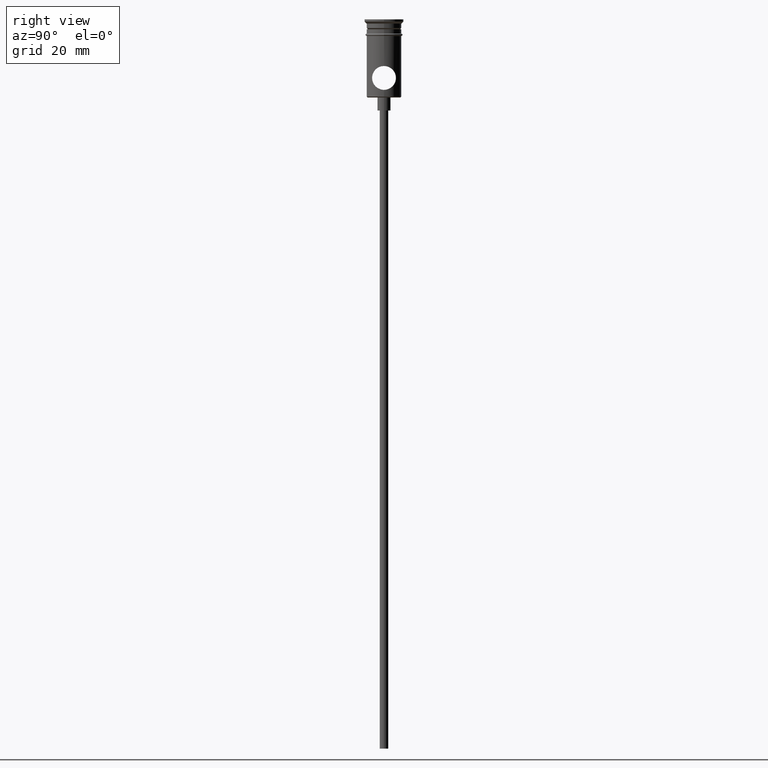
[diagram: clean part render]
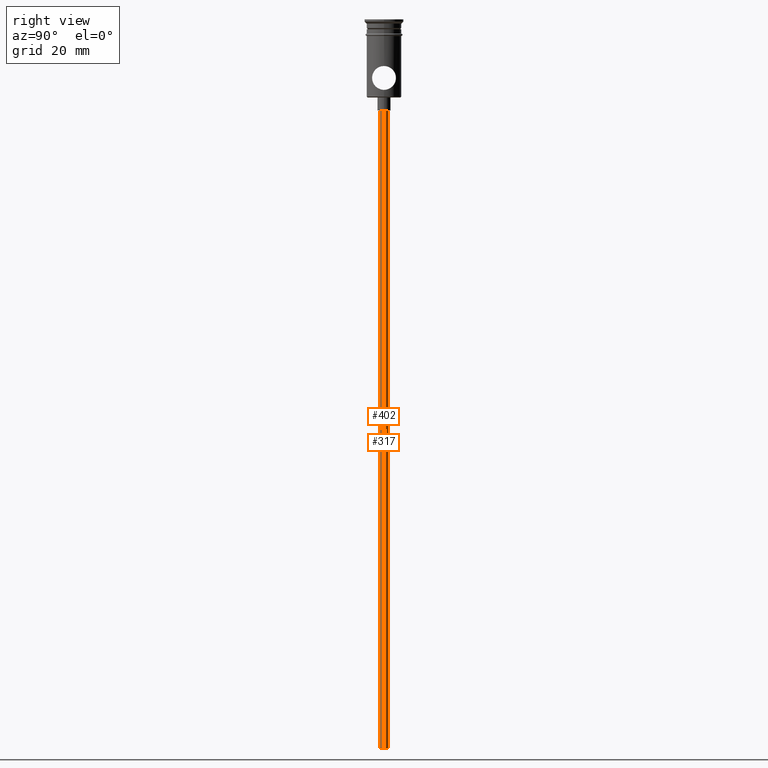
[diagram: same view with one multi-face feature highlighted, each face labeled with its STEP entity id]
A machine part, right view. The highlighted faces form ONE feature: a constant-radius fillet chain: 2 tangent blend faces with common blend radius 1 mm. The faces share edges in the B-rep.
Their STEP definitions:
[1] entity #317 (Cylinder):
#34 = ORIENTED_EDGE ( 'NONE', *, *, #428, .F. ) ;
#70 = AXIS2_PLACEMENT_3D ( 'NONE', #1213, #156, #585 ) ;
#94 = ORIENTED_EDGE ( 'NONE', *, *, #448, .T. ) ;
#119 = CARTESIAN_POINT ( 'NONE',  ( 0.000000000000000000, 0.000000000000000000, -20.99999999999999645 ) ) ;
#121 = ORIENTED_EDGE ( 'NONE', *, *, #131, .T. ) ;
#131 = EDGE_CURVE ( 'NONE', #1044, #1380, #1000, .T. ) ;
#156 = DIRECTION ( 'NONE',  ( -0.000000000000000000, -0.000000000000000000, 1.000000000000000000 ) ) ;
#264 = EDGE_LOOP ( 'NONE', ( #795, #94, #121, #34 ) ) ;
#272 = DIRECTION ( 'NONE',  ( -1.000000000000000000, 0.000000000000000000, 0.000000000000000000 ) ) ;
#308 = VERTEX_POINT ( 'NONE', #1126 ) ;
#317 = ADVANCED_FACE ( 'NONE', ( #1001 ), #1339, .T. ) ;
#428 = EDGE_CURVE ( 'NONE', #1334, #1380, #523, .T. ) ;
#448 = EDGE_CURVE ( 'NONE', #308, #1044, #831, .T. ) ;
#449 = DIRECTION ( 'NONE',  ( -1.000000000000000000, 0.000000000000000000, 0.000000000000000000 ) ) ;
#513 = CIRCLE ( 'NONE', #1306, 0.9999999999999997780 ) ;
#523 = LINE ( 'NONE', #1170, #643 ) ;
#585 = DIRECTION ( 'NONE',  ( 1.000000000000000000, 0.000000000000000000, 0.000000000000000000 ) ) ;
#616 = DIRECTION ( 'NONE',  ( 0.000000000000000000, 0.000000000000000000, -1.000000000000000000 ) ) ;
#643 = VECTOR ( 'NONE', #1048, 1000.000000000000000 ) ;
#667 = VECTOR ( 'NONE', #937, 1000.000000000000000 ) ;
#697 = CARTESIAN_POINT ( 'NONE',  ( 0.000000000000000000, 0.000000000000000000, -167.9999999999999716 ) ) ;
#711 = AXIS2_PLACEMENT_3D ( 'NONE', #119, #1319, #449 ) ;
#795 = ORIENTED_EDGE ( 'NONE', *, *, #819, .F. ) ;
#819 = EDGE_CURVE ( 'NONE', #308, #1334, #513, .T. ) ;
#831 = LINE ( 'NONE', #1034, #667 ) ;
#874 = CARTESIAN_POINT ( 'NONE',  ( -0.9999999999999997780, 1.224646799147352961E-16, -20.99999999999999645 ) ) ;
#937 = DIRECTION ( 'NONE',  ( -0.000000000000000000, -0.000000000000000000, 1.000000000000000000 ) ) ;
#1000 = CIRCLE ( 'NONE', #711, 0.9999999999999997780 ) ;
#1001 = FACE_OUTER_BOUND ( 'NONE', #264, .T. ) ;
#1034 = CARTESIAN_POINT ( 'NONE',  ( -0.9999999999999997780, 1.224646799147352961E-16, -167.9999999999999716 ) ) ;
#1044 = VERTEX_POINT ( 'NONE', #874 ) ;
#1048 = DIRECTION ( 'NONE',  ( -0.000000000000000000, -0.000000000000000000, 1.000000000000000000 ) ) ;
#1103 = CARTESIAN_POINT ( 'NONE',  ( 0.9999999999999997780, 0.000000000000000000, -20.99999999999999645 ) ) ;
#1126 = CARTESIAN_POINT ( 'NONE',  ( -0.9999999999999997780, 1.224646799147352961E-16, -167.9999999999999716 ) ) ;
#1170 = CARTESIAN_POINT ( 'NONE',  ( 0.9999999999999997780, 0.000000000000000000, -167.9999999999999716 ) ) ;
#1213 = CARTESIAN_POINT ( 'NONE',  ( 0.000000000000000000, 0.000000000000000000, -167.9999999999999716 ) ) ;
#1306 = AXIS2_PLACEMENT_3D ( 'NONE', #697, #616, #272 ) ;
#1319 = DIRECTION ( 'NONE',  ( 0.000000000000000000, 0.000000000000000000, -1.000000000000000000 ) ) ;
#1334 = VERTEX_POINT ( 'NONE', #1343 ) ;
#1339 = CYLINDRICAL_SURFACE ( 'NONE', #70, 0.9999999999999997780 ) ;
#1343 = CARTESIAN_POINT ( 'NONE',  ( 0.9999999999999997780, 0.000000000000000000, -167.9999999999999716 ) ) ;
#1380 = VERTEX_POINT ( 'NONE', #1103 ) ;
[2] entity #402 (Cylinder):
#68 = CYLINDRICAL_SURFACE ( 'NONE', #209, 0.9999999999999997780 ) ;
#93 = EDGE_LOOP ( 'NONE', ( #588, #545, #748, #1104 ) ) ;
#209 = AXIS2_PLACEMENT_3D ( 'NONE', #301, #715, #1366 ) ;
#213 = EDGE_CURVE ( 'NONE', #1380, #1044, #1043, .T. ) ;
#301 = CARTESIAN_POINT ( 'NONE',  ( 0.000000000000000000, 0.000000000000000000, -167.9999999999999716 ) ) ;
#308 = VERTEX_POINT ( 'NONE', #1126 ) ;
#402 = ADVANCED_FACE ( 'NONE', ( #917 ), #68, .T. ) ;
#413 = AXIS2_PLACEMENT_3D ( 'NONE', #861, #647, #1078 ) ;
#419 = DIRECTION ( 'NONE',  ( 0.000000000000000000, 0.000000000000000000, -1.000000000000000000 ) ) ;
#428 = EDGE_CURVE ( 'NONE', #1334, #1380, #523, .T. ) ;
#448 = EDGE_CURVE ( 'NONE', #308, #1044, #831, .T. ) ;
#490 = AXIS2_PLACEMENT_3D ( 'NONE', #538, #419, #527 ) ;
#523 = LINE ( 'NONE', #1170, #643 ) ;
#527 = DIRECTION ( 'NONE',  ( -1.000000000000000000, 0.000000000000000000, 0.000000000000000000 ) ) ;
#538 = CARTESIAN_POINT ( 'NONE',  ( 0.000000000000000000, 0.000000000000000000, -167.9999999999999716 ) ) ;
#545 = ORIENTED_EDGE ( 'NONE', *, *, #987, .F. ) ;
#588 = ORIENTED_EDGE ( 'NONE', *, *, #448, .F. ) ;
#643 = VECTOR ( 'NONE', #1048, 1000.000000000000000 ) ;
#647 = DIRECTION ( 'NONE',  ( 0.000000000000000000, 0.000000000000000000, -1.000000000000000000 ) ) ;
#667 = VECTOR ( 'NONE', #937, 1000.000000000000000 ) ;
#715 = DIRECTION ( 'NONE',  ( -0.000000000000000000, -0.000000000000000000, 1.000000000000000000 ) ) ;
#748 = ORIENTED_EDGE ( 'NONE', *, *, #428, .T. ) ;
#806 = CIRCLE ( 'NONE', #490, 0.9999999999999997780 ) ;
#831 = LINE ( 'NONE', #1034, #667 ) ;
#861 = CARTESIAN_POINT ( 'NONE',  ( 0.000000000000000000, 0.000000000000000000, -20.99999999999999645 ) ) ;
#874 = CARTESIAN_POINT ( 'NONE',  ( -0.9999999999999997780, 1.224646799147352961E-16, -20.99999999999999645 ) ) ;
#917 = FACE_OUTER_BOUND ( 'NONE', #93, .T. ) ;
#937 = DIRECTION ( 'NONE',  ( -0.000000000000000000, -0.000000000000000000, 1.000000000000000000 ) ) ;
#987 = EDGE_CURVE ( 'NONE', #1334, #308, #806, .T. ) ;
#1034 = CARTESIAN_POINT ( 'NONE',  ( -0.9999999999999997780, 1.224646799147352961E-16, -167.9999999999999716 ) ) ;
#1043 = CIRCLE ( 'NONE', #413, 0.9999999999999997780 ) ;
#1044 = VERTEX_POINT ( 'NONE', #874 ) ;
#1048 = DIRECTION ( 'NONE',  ( -0.000000000000000000, -0.000000000000000000, 1.000000000000000000 ) ) ;
#1078 = DIRECTION ( 'NONE',  ( -1.000000000000000000, 0.000000000000000000, 0.000000000000000000 ) ) ;
#1103 = CARTESIAN_POINT ( 'NONE',  ( 0.9999999999999997780, 0.000000000000000000, -20.99999999999999645 ) ) ;
#1104 = ORIENTED_EDGE ( 'NONE', *, *, #213, .T. ) ;
#1126 = CARTESIAN_POINT ( 'NONE',  ( -0.9999999999999997780, 1.224646799147352961E-16, -167.9999999999999716 ) ) ;
#1170 = CARTESIAN_POINT ( 'NONE',  ( 0.9999999999999997780, 0.000000000000000000, -167.9999999999999716 ) ) ;
#1334 = VERTEX_POINT ( 'NONE', #1343 ) ;
#1343 = CARTESIAN_POINT ( 'NONE',  ( 0.9999999999999997780, 0.000000000000000000, -167.9999999999999716 ) ) ;
#1366 = DIRECTION ( 'NONE',  ( 1.000000000000000000, 0.000000000000000000, 0.000000000000000000 ) ) ;
#1380 = VERTEX_POINT ( 'NONE', #1103 ) ;